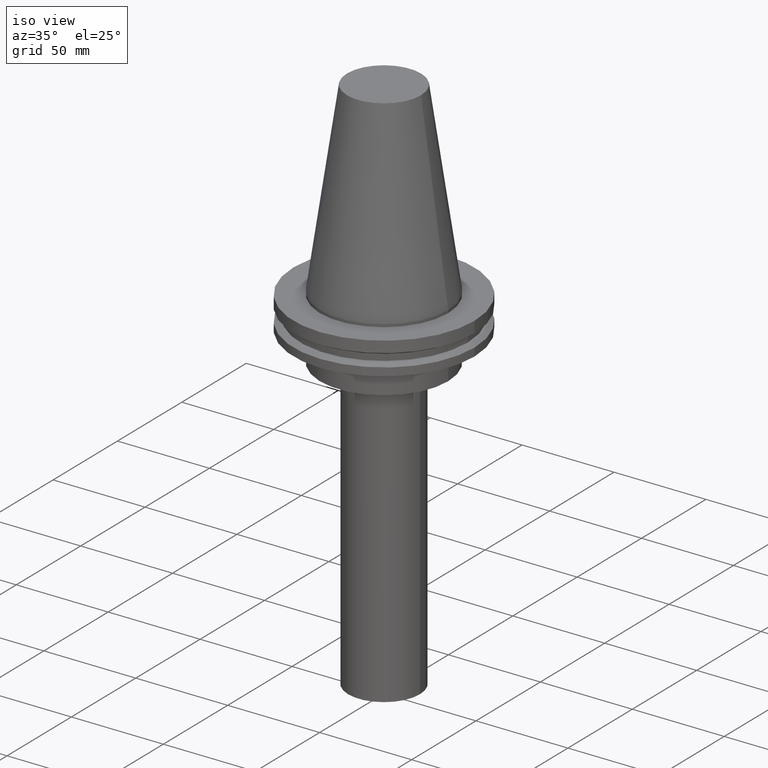
[diagram: clean part render]
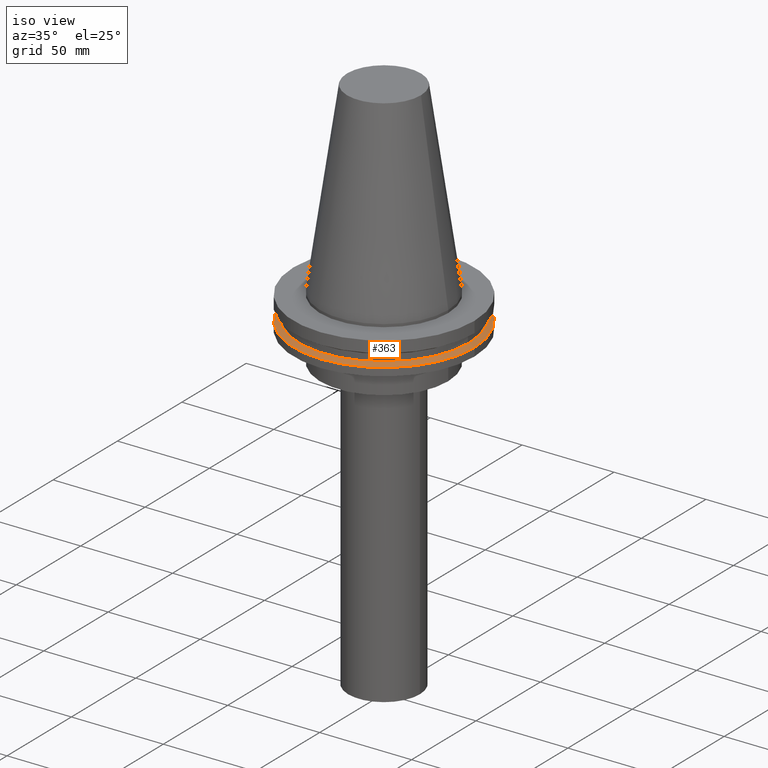
[diagram: same view with one face highlighted and labeled with its STEP entity id]
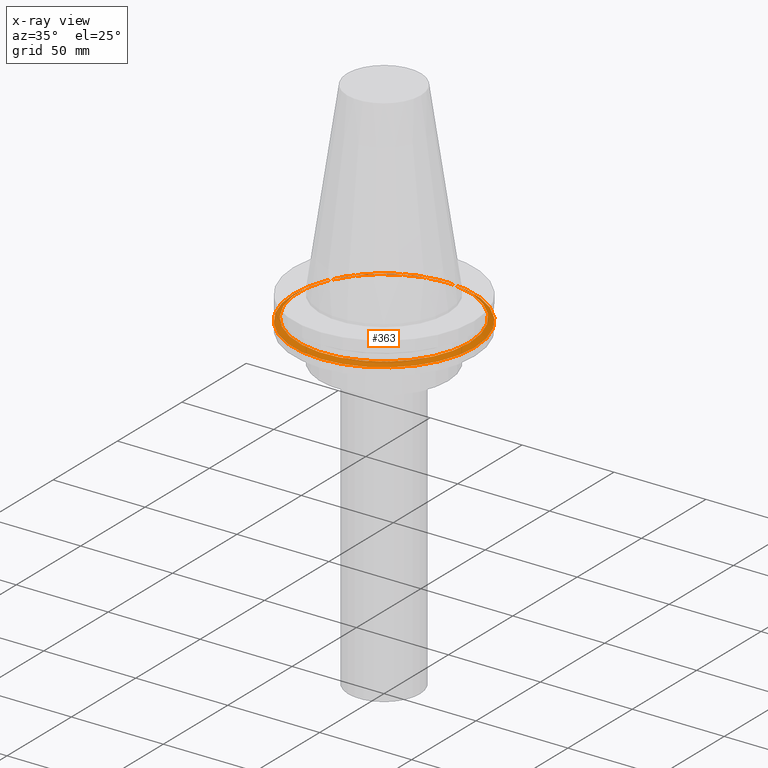
[diagram: x-ray of the same camera — body ghosted, the highlighted face saturated]
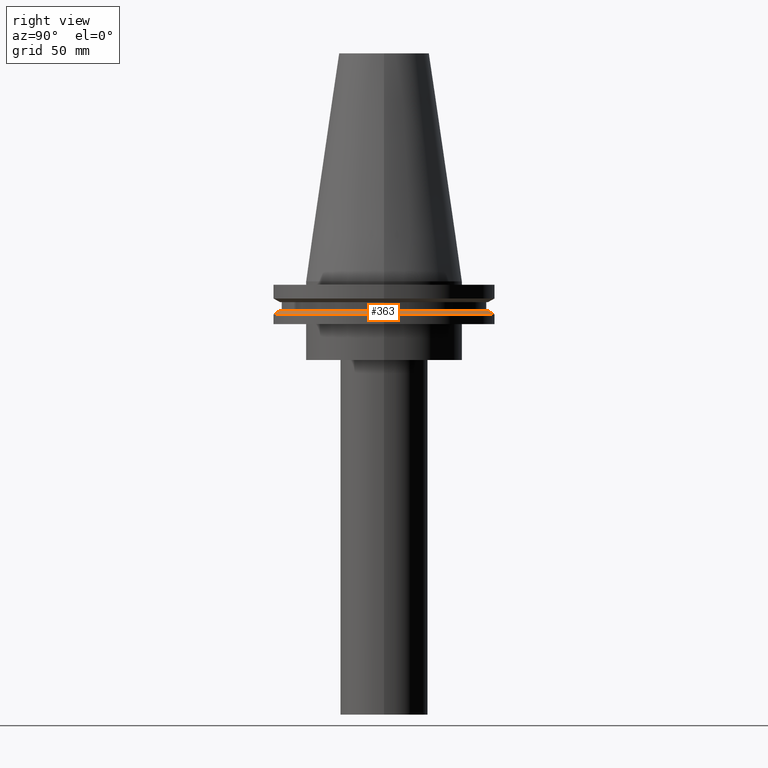
[diagram: same view with one face highlighted and labeled with its STEP entity id]
A machine part, iso view. The second image highlights one B-rep face of the part: STEP entity #363.
The next image is the same camera in x-ray: the body ghosted, the highlighted face saturated — about 4% of this face is hidden behind the body in this view.
A second angle (right view) of the same face is appended — the face is thin or edge-on in the first view.
In plain terms, the highlighted conical surface has half-angle 60 deg.
Its self-contained STEP definition (entity closure, byte-faithful):
#12 = AXIS2_PLACEMENT_3D ( 'NONE', #390, #301, #55 ) ;
#32 = CIRCLE ( 'NONE', #130, 49.21499999999998920 ) ;
#36 = CONICAL_SURFACE ( 'NONE', #12, 49.21499999999998920, 1.047197551196554333 ) ;
#43 = CARTESIAN_POINT ( 'NONE',  ( 0.000000000000000000, 0.000000000000000000, -13.05499999999999794 ) ) ;
#55 = DIRECTION ( 'NONE',  ( -1.000000000000000000, 0.000000000000000000, 0.000000000000000000 ) ) ;
#69 = ORIENTED_EDGE ( 'NONE', *, *, #215, .F. ) ;
#70 = DIRECTION ( 'NONE',  ( -0.000000000000000000, -0.000000000000000000, 1.000000000000000000 ) ) ;
#95 = ORIENTED_EDGE ( 'NONE', *, *, #319, .T. ) ;
#105 = AXIS2_PLACEMENT_3D ( 'NONE', #43, #70, #191 ) ;
#122 = VERTEX_POINT ( 'NONE', #265 ) ;
#125 = CARTESIAN_POINT ( 'NONE',  ( 0.000000000000000000, 0.000000000000000000, -14.65761014474876944 ) ) ;
#127 = DIRECTION ( 'NONE',  ( 1.000000000000000000, 0.000000000000000000, 0.000000000000000000 ) ) ;
#130 = AXIS2_PLACEMENT_3D ( 'NONE', #125, #212, #127 ) ;
#170 = VERTEX_POINT ( 'NONE', #330 ) ;
#191 = DIRECTION ( 'NONE',  ( 1.000000000000000000, 0.000000000000000000, 0.000000000000000000 ) ) ;
#212 = DIRECTION ( 'NONE',  ( -0.000000000000000000, -0.000000000000000000, 1.000000000000000000 ) ) ;
#215 = EDGE_CURVE ( 'NONE', #170, #170, #297, .T. ) ;
#220 = EDGE_LOOP ( 'NONE', ( #95 ) ) ;
#265 = CARTESIAN_POINT ( 'NONE',  ( 49.21499999999998920, 0.000000000000000000, -14.65761014474876944 ) ) ;
#266 = FACE_BOUND ( 'NONE', #371, .T. ) ;
#297 = CIRCLE ( 'NONE', #105, 46.43919780457007818 ) ;
#301 = DIRECTION ( 'NONE',  ( 0.000000000000000000, 0.000000000000000000, -1.000000000000000000 ) ) ;
#319 = EDGE_CURVE ( 'NONE', #122, #122, #32, .T. ) ;
#330 = CARTESIAN_POINT ( 'NONE',  ( 46.43919780457007818, 0.000000000000000000, -13.05499999999999794 ) ) ;
#357 = FACE_OUTER_BOUND ( 'NONE', #220, .T. ) ;
#363 = ADVANCED_FACE ( 'NONE', ( #266, #357 ), #36, .T. ) ;
#371 = EDGE_LOOP ( 'NONE', ( #69 ) ) ;
#390 = CARTESIAN_POINT ( 'NONE',  ( 0.000000000000000000, 0.000000000000000000, -14.65761014474876944 ) ) ;